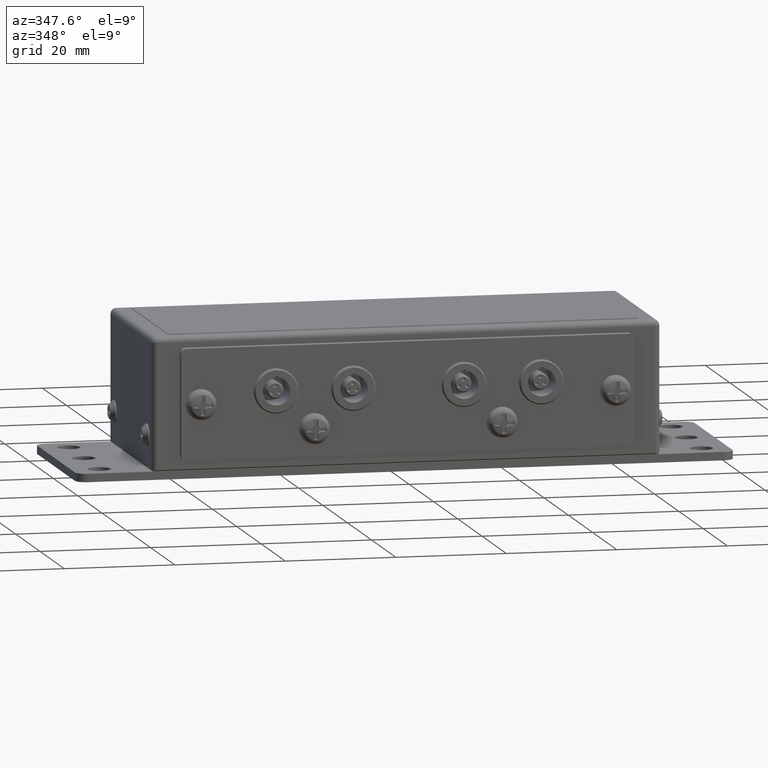
[diagram: clean part render]
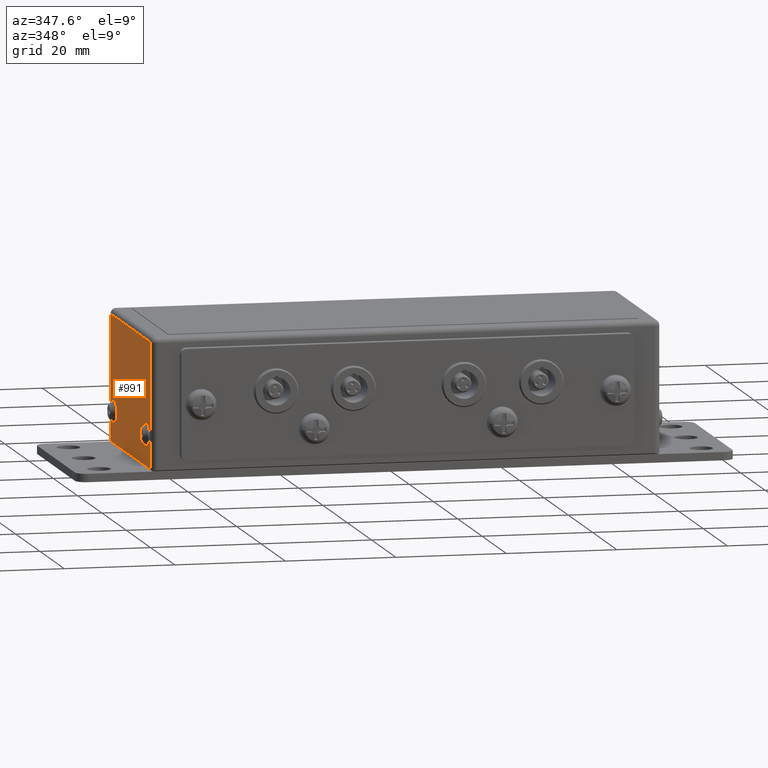
[diagram: same view with one face highlighted and labeled with its STEP entity id]
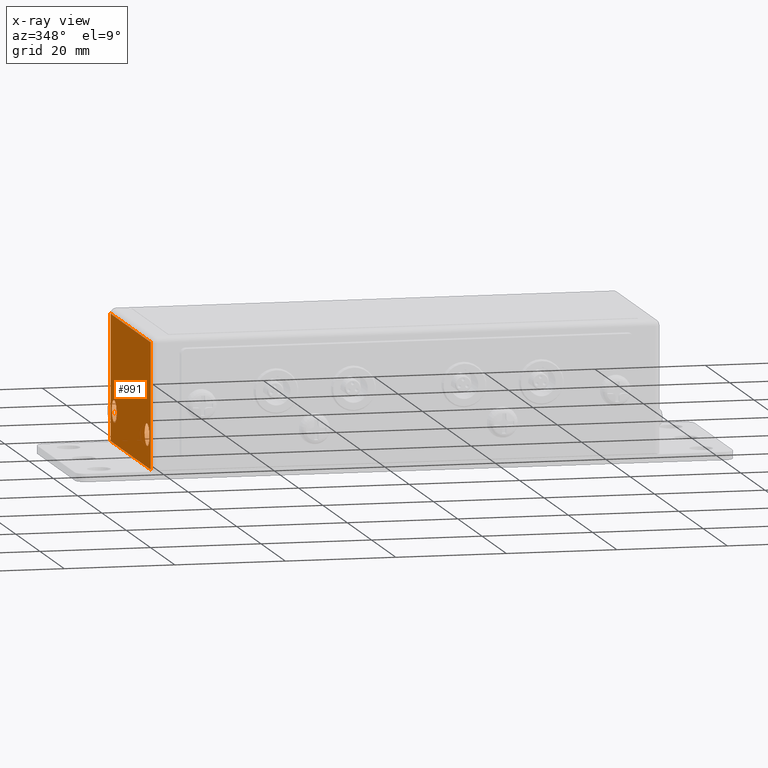
[diagram: x-ray of the same camera — body ghosted, the highlighted face saturated]
A machine part, auxiliary view. The second image highlights one B-rep face of the part: STEP entity #991.
The next image is the same camera in x-ray: the body ghosted, the highlighted face saturated — about 0% of this face is hidden behind the body in this view.
In plain terms, the highlighted planar face has unit normal (1, 0, 0).
Its self-contained STEP definition (entity closure, byte-faithful):
#991 = ADVANCED_FACE( '', ( #2119, #2120, #2121 ), #2122, .F. );
#2119 = FACE_OUTER_BOUND( '', #3240, .T. );
#2120 = FACE_BOUND( '', #3241, .T. );
#2121 = FACE_BOUND( '', #3242, .T. );
#2122 = PLANE( '', #3243 );
#3240 = EDGE_LOOP( '', ( #5878, #5879, #5880, #5881 ) );
#3241 = EDGE_LOOP( '', ( #5882 ) );
#3242 = EDGE_LOOP( '', ( #5883 ) );
#3243 = AXIS2_PLACEMENT_3D( '', #5884, #5885, #5886 );
#5878 = ORIENTED_EDGE( '', *, *, #6576, .T. );
#5879 = ORIENTED_EDGE( '', *, *, #6285, .T. );
#5880 = ORIENTED_EDGE( '', *, *, #6860, .T. );
#5881 = ORIENTED_EDGE( '', *, *, #6410, .T. );
#5882 = ORIENTED_EDGE( '', *, *, #6760, .T. );
#5883 = ORIENTED_EDGE( '', *, *, #6706, .F. );
#5884 = CARTESIAN_POINT( '', ( -46.0000000000001, -17.5000000000000, -24.0000000000000 ) );
#5885 = DIRECTION( '', ( 1.00000000000000, 0.000000000000000, 0.000000000000000 ) );
#5886 = DIRECTION( '', ( 0.000000000000000, -1.00000000000000, 0.000000000000000 ) );
#6285 = EDGE_CURVE( '', #7560, #7557, #7561, .F. );
#6410 = EDGE_CURVE( '', #7750, #7748, #7751, .T. );
#6576 = EDGE_CURVE( '', #7748, #7560, #7986, .T. );
#6706 = EDGE_CURVE( '', #8159, #8159, #8160, .T. );
#6760 = EDGE_CURVE( '', #8231, #8231, #8232, .T. );
#6860 = EDGE_CURVE( '', #7557, #7750, #8345, .T. );
#7557 = VERTEX_POINT( '', #9238 );
#7560 = VERTEX_POINT( '', #9241 );
#7561 = LINE( '', #9242, #9243 );
#7748 = VERTEX_POINT( '', #9486 );
#7750 = VERTEX_POINT( '', #9488 );
#7751 = LINE( '', #9489, #9490 );
#7986 = LINE( '', #9814, #9815 );
#8159 = VERTEX_POINT( '', #10035 );
#8160 = CIRCLE( '', #10036, 1.99999999999997 );
#8231 = VERTEX_POINT( '', #10135 );
#8232 = CIRCLE( '', #10136, 1.99999999999997 );
#8345 = LINE( '', #10291, #10292 );
#9238 = CARTESIAN_POINT( '', ( -46.0000000000001, 16.5000000000000, -23.8000000000000 ) );
#9241 = CARTESIAN_POINT( '', ( -46.0000000000001, 16.5000000000000, -1.00000000000000 ) );
#9242 = CARTESIAN_POINT( '', ( -46.0000000000001, 16.5000000000000, -24.0000000000000 ) );
#9243 = VECTOR( '', #10865, 1000.00000000000 );
#9486 = CARTESIAN_POINT( '', ( -46.0000000000001, -16.5000000000000, -1.00000000000000 ) );
#9488 = CARTESIAN_POINT( '', ( -46.0000000000001, -16.5000000000000, -23.8000000000000 ) );
#9489 = CARTESIAN_POINT( '', ( -46.0000000000001, -16.5000000000000, -24.0000000000000 ) );
#9490 = VECTOR( '', #11041, 1000.00000000000 );
#9814 = CARTESIAN_POINT( '', ( -46.0000000000001, -17.5000000000000, -1.00000000000000 ) );
#9815 = VECTOR( '', #11248, 1000.00000000000 );
#10035 = CARTESIAN_POINT( '', ( -46.0000000000000, -13.5000000000000, -20.0000000000000 ) );
#10036 = AXIS2_PLACEMENT_3D( '', #11397, #11398, #11399 );
#10135 = CARTESIAN_POINT( '', ( -46.0000000000000, 13.5000000000000, -20.0000000000000 ) );
#10136 = AXIS2_PLACEMENT_3D( '', #11450, #11451, #11452 );
#10291 = CARTESIAN_POINT( '', ( -46.0000000000001, -17.5000000000000, -23.8000000000000 ) );
#10292 = VECTOR( '', #11526, 1000.00000000000 );
#10865 = DIRECTION( '', ( -0.000000000000000, 0.000000000000000, 1.00000000000000 ) );
#11041 = DIRECTION( '', ( 0.000000000000000, 0.000000000000000, 1.00000000000000 ) );
#11248 = DIRECTION( '', ( -0.000000000000000, 1.00000000000000, 0.000000000000000 ) );
#11397 = CARTESIAN_POINT( '', ( -46.0000000000000, -13.5000000000000, -18.0000000000000 ) );
#11398 = DIRECTION( '', ( -1.00000000000000, -0.000000000000000, -0.000000000000000 ) );
#11399 = DIRECTION( '', ( 0.000000000000000, 0.000000000000000, -1.00000000000000 ) );
#11450 = CARTESIAN_POINT( '', ( -46.0000000000000, 13.5000000000000, -18.0000000000000 ) );
#11451 = DIRECTION( '', ( 1.00000000000000, 0.000000000000000, 0.000000000000000 ) );
#11452 = DIRECTION( '', ( 0.000000000000000, 0.000000000000000, -1.00000000000000 ) );
#11526 = DIRECTION( '', ( 0.000000000000000, -1.00000000000000, 0.000000000000000 ) );